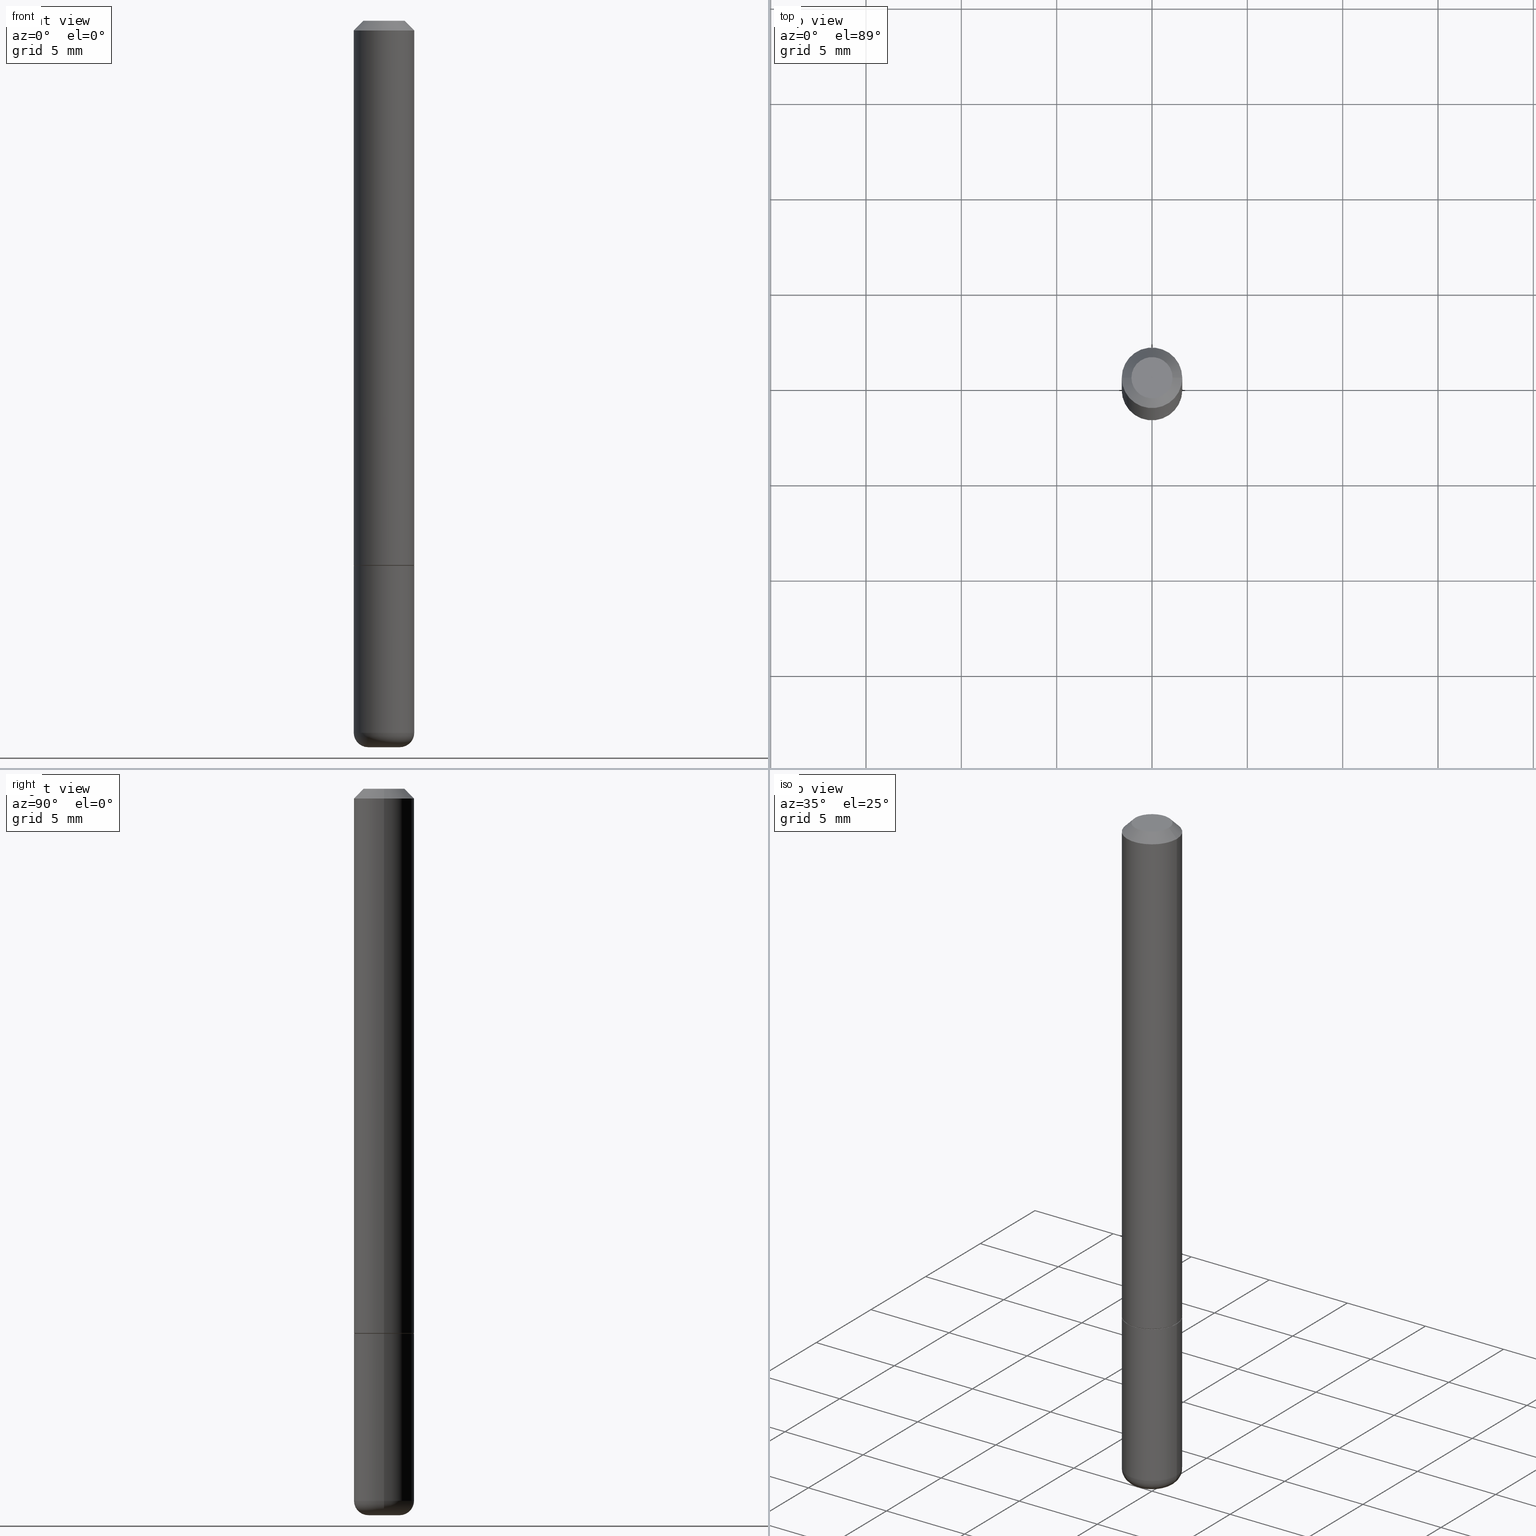
[diagram: canonical four-view strip — front | top / right | iso, engineering-drawing reading convention]
A machine part, canonical four-view strip (front | top / right | iso — engineering-drawing reading convention). The complete STEP part file that produces these views, byte-faithful:
ISO-10303-21;
HEADER;
FILE_DESCRIPTION (( 'STEP AP203' ),
    '1' );
FILE_NAME ('38777.STEP',
    '2024-03-03T12:11:32',
    ( '' ),
    ( '' ),
    'SwSTEP 2.0',
    'SolidWorks 2023',
    '' );
FILE_SCHEMA (( 'CONFIG_CONTROL_DESIGN' ));
ENDSEC;

DATA;
#1 = CARTESIAN_POINT ( 'NONE',  ( 2.751152406958279232E-29, -3.927916506198539224E-15, -1.125000000000000222 ) ) ;
#2 = ADVANCED_FACE ( 'NONE', ( #337 ), #306, .T. ) ;
#3 = PRODUCT_DEFINITION ( 'UNKNOWN', '', #65, #138 ) ;
#4 = LINE ( 'NONE', #326, #348 ) ;
#5 = DIRECTION ( 'NONE',  ( 1.000000000000000000, -6.982962677686262766E-15, 0.000000000000000000 ) ) ;
#6 = AXIS2_PLACEMENT_3D ( 'NONE', #312, #58, #24 ) ;
#7 = CC_DESIGN_PERSON_AND_ORGANIZATION_ASSIGNMENT ( #52, #57, ( #65 ) ) ;
#8 = DIRECTION ( 'NONE',  ( -2.445468806185136597E-29, 3.491481338843145583E-15, 1.000000000000000000 ) ) ;
#9 = FACE_OUTER_BOUND ( 'NONE', #376, .T. ) ;
#10 = DIRECTION ( 'NONE',  ( 1.000000000000000000, -6.982962677686265133E-15, 4.883557194083112340E-29 ) ) ;
#11 = CIRCLE ( 'NONE', #175, 0.02999999999999998154 ) ;
#12 = PERSON_AND_ORGANIZATION_ROLE ( 'creator' ) ;
#13 = EDGE_LOOP ( 'NONE', ( #207, #375 ) ) ;
#14 = MECHANICAL_CONTEXT ( 'NONE', #341, 'mechanical' ) ;
#15 = ORIENTED_EDGE ( 'NONE', *, *, #67, .T. ) ;
#16 = DIRECTION ( 'NONE',  ( 1.000000000000000000, 0.000000000000000000, 0.000000000000000000 ) ) ;
#17 = ORIENTED_EDGE ( 'NONE', *, *, #274, .T. ) ;
#18 = CARTESIAN_POINT ( 'NONE',  ( 0.000000000000000000, 0.000000000000000000, 0.000000000000000000 ) ) ;
#19 = VECTOR ( 'NONE', #412, 39.37007874015748143 ) ;
#20 = VECTOR ( 'NONE', #246, 39.37007874015748143 ) ;
#21 = ORIENTED_EDGE ( 'NONE', *, *, #296, .F. ) ;
#22 = APPROVAL_STATUS ( 'not_yet_approved' ) ;
#23 = ORIENTED_EDGE ( 'NONE', *, *, #296, .T. ) ;
#24 = DIRECTION ( 'NONE',  ( 1.000000000000000000, -6.982962677686269866E-15, 0.000000000000000000 ) ) ;
#25 = APPROVAL_DATE_TIME ( #85, #311 ) ;
#26 = FACE_OUTER_BOUND ( 'NONE', #406, .T. ) ;
#27 = CC_DESIGN_SECURITY_CLASSIFICATION ( #117, ( #65 ) ) ;
#28 = COORDINATED_UNIVERSAL_TIME_OFFSET ( 5, 0, .BEHIND. ) ;
#29 = DIRECTION ( 'NONE',  ( -2.445468806185136877E-29, 3.491481338843145188E-15, 1.000000000000000000 ) ) ;
#30 = FACE_OUTER_BOUND ( 'NONE', #49, .T. ) ;
#31 = PLANE ( 'NONE',  #194 ) ;
#32 = AXIS2_PLACEMENT_3D ( 'NONE', #133, #329, #5 ) ;
#33 = FACE_OUTER_BOUND ( 'NONE', #395, .T. ) ;
#34 = CYLINDRICAL_SURFACE ( 'NONE', #244, 0.06250000000000008327 ) ;
#35 = CARTESIAN_POINT ( 'NONE',  ( -0.06250000000000015266, -1.553038115968214380E-15, -1.124000000000000332 ) ) ;
#36 = VERTEX_POINT ( 'NONE', #248 ) ;
#37 = CONICAL_SURFACE ( 'NONE', #325, 0.06149999999999999911, 0.7853981633975591903 ) ;
#38 = CIRCLE ( 'NONE', #136, 0.06250000000000015266 ) ;
#39 = DIRECTION ( 'NONE',  ( 1.000000000000000000, -6.982962677686266711E-15, 4.876176775795935793E-29 ) ) ;
#40 = DIRECTION ( 'NONE',  ( -0.7071067811866259545, 7.493145998870638150E-15, 0.7071067811864690800 ) ) ;
#41 = ORIENTED_EDGE ( 'NONE', *, *, #123, .F. ) ;
#42 = DIRECTION ( 'NONE',  ( -2.445468806185136597E-29, 3.491481338843145583E-15, 1.000000000000000000 ) ) ;
#43 = ORIENTED_EDGE ( 'NONE', *, *, #342, .T. ) ;
#44 =( GEOMETRIC_REPRESENTATION_CONTEXT ( 3 ) GLOBAL_UNCERTAINTY_ASSIGNED_CONTEXT ( ( #289 ) ) GLOBAL_UNIT_ASSIGNED_CONTEXT ( ( #298, #45, #171 ) ) REPRESENTATION_CONTEXT ( 'NONE', 'WORKASPACE' ) );
#45 =( NAMED_UNIT ( * ) PLANE_ANGLE_UNIT ( ) SI_UNIT ( $, .RADIAN. ) );
#46 = ORIENTED_EDGE ( 'NONE', *, *, #250, .T. ) ;
#47 = ORIENTED_EDGE ( 'NONE', *, *, #259, .F. ) ;
#48 = PERSON_AND_ORGANIZATION ( #396, #334 ) ;
#49 = EDGE_LOOP ( 'NONE', ( #47, #324 ) ) ;
#50 = COORDINATED_UNIVERSAL_TIME_OFFSET ( 5, 0, .BEHIND. ) ;
#51 = ORIENTED_EDGE ( 'NONE', *, *, #83, .F. ) ;
#52 = PERSON_AND_ORGANIZATION ( #396, #334 ) ;
#53 = DIRECTION ( 'NONE',  ( -1.000000000000000000, 6.982962677686265922E-15, -4.876176775795935793E-29 ) ) ;
#54 = COORDINATED_UNIVERSAL_TIME_OFFSET ( 5, 0, .BEHIND. ) ;
#55 = ADVANCED_FACE ( 'NONE', ( #127 ), #223, .T. ) ;
#56 = FACE_OUTER_BOUND ( 'NONE', #358, .T. ) ;
#57 = PERSON_AND_ORGANIZATION_ROLE ( 'design_supplier' ) ;
#58 = DIRECTION ( 'NONE',  ( -2.445468806185136597E-29, 3.491481338843145583E-15, 1.000000000000000000 ) ) ;
#59 = CARTESIAN_POINT ( 'NONE',  ( 0.06250000000000008327, -4.364351673553922611E-16, 3.047610484872464074E-30 ) ) ;
#60 = ADVANCED_FACE ( 'NONE', ( #314 ), #31, .F. ) ;
#61 = PERSON_AND_ORGANIZATION ( #396, #334 ) ;
#62 = DIRECTION ( 'NONE',  ( -2.445468806185136597E-29, 3.491481338843145583E-15, 1.000000000000000000 ) ) ;
#63 = DIRECTION ( 'NONE',  ( 1.000000000000000000, -6.982962677686272233E-15, 0.000000000000000000 ) ) ;
#64 = VECTOR ( 'NONE', #221, 39.37007874015748143 ) ;
#65 = PRODUCT_DEFINITION_FORMATION_WITH_SPECIFIED_SOURCE ( 'ANY', '', #269, .NOT_KNOWN. ) ;
#66 = CARTESIAN_POINT ( 'NONE',  ( 3.594839145092150820E-29, -5.132477568099424807E-15, -1.470000000000000195 ) ) ;
#67 = EDGE_CURVE ( 'NONE', #203, #310, #351, .T. ) ;
#68 = ORIENTED_EDGE ( 'NONE', *, *, #303, .T. ) ;
#69 = CARTESIAN_POINT ( 'NONE',  ( 3.668203209277704895E-29, -5.237222008264718177E-15, -1.500000000000000222 ) ) ;
#70 = CARTESIAN_POINT ( 'NONE',  ( -0.04250000000000002387, 3.316907271900975110E-16, -2.561107494060466786E-17 ) ) ;
#71 = LINE ( 'NONE', #100, #64 ) ;
#72 = PRODUCT_RELATED_PRODUCT_CATEGORY ( 'detail', '', ( #269 ) ) ;
#73 = PERSON_AND_ORGANIZATION_ROLE ( 'design_owner' ) ;
#74 = VERTEX_POINT ( 'NONE', #281 ) ;
#75 = CC_DESIGN_PERSON_AND_ORGANIZATION_ASSIGNMENT ( #242, #343, ( #117 ) ) ;
#76 = VERTEX_POINT ( 'NONE', #347 ) ;
#77 = PRODUCT_DEFINITION_SHAPE ( 'NONE', 'NONE',  #3 ) ;
#78 = ORIENTED_EDGE ( 'NONE', *, *, #266, .F. ) ;
#79 = APPLICATION_PROTOCOL_DEFINITION ( 'international standard', 'config_control_design', 1994, #341 ) ;
#80 = EDGE_LOOP ( 'NONE', ( #46, #68, #115, #146 ) ) ;
#81 = AXIS2_PLACEMENT_3D ( 'NONE', #69, #320, #229 ) ;
#82 = ORIENTED_EDGE ( 'NONE', *, *, #200, .F. ) ;
#83 = EDGE_CURVE ( 'NONE', #310, #129, #131, .T. ) ;
#84 = DIRECTION ( 'NONE',  ( -2.445468806185136597E-29, 3.491481338843145583E-15, 1.000000000000000000 ) ) ;
#85 = DATE_AND_TIME ( #378, #371 ) ;
#86 = PLANE ( 'NONE',  #418 ) ;
#87 = APPROVAL_ROLE ( '' ) ;
#88 = CARTESIAN_POINT ( 'NONE',  ( -0.03250000000000000111, -4.901551178977391647E-15, -1.470000000000000195 ) ) ;
#89 = AXIS2_PLACEMENT_3D ( 'NONE', #66, #260, #10 ) ;
#90 = LOCAL_TIME ( 7, 11, 32.00000000000000000, #137 ) ;
#91 = APPROVAL_STATUS ( 'not_yet_approved' ) ;
#92 = CARTESIAN_POINT ( 'NONE',  ( 0.06250000000000001388, -4.986107516375840208E-16, -0.02000000000000006981 ) ) ;
#93 = DIRECTION ( 'NONE',  ( 1.000000000000000000, -6.982962677686262766E-15, 0.000000000000000000 ) ) ;
#94 = CARTESIAN_POINT ( 'NONE',  ( 2.748706938152094189E-29, -3.924425024859696217E-15, -1.124000000000000332 ) ) ;
#95 = CIRCLE ( 'NONE', #81, 0.03250000000000000111 ) ;
#96 = CC_DESIGN_PERSON_AND_ORGANIZATION_ASSIGNMENT ( #233, #12, ( #3 ) ) ;
#97 = CARTESIAN_POINT ( 'NONE',  ( 2.751152406958279232E-29, -3.927916506198539224E-15, -1.125000000000000222 ) ) ;
#98 = ORIENTED_EDGE ( 'NONE', *, *, #285, .F. ) ;
#99 = CARTESIAN_POINT ( 'NONE',  ( 3.668203209277704895E-29, -5.237222008264718177E-15, -1.500000000000000222 ) ) ;
#100 = CARTESIAN_POINT ( 'NONE',  ( -0.06250000000000008327, 4.440892098500632078E-16, -3.074334431409319967E-30 ) ) ;
#101 = CLOSED_SHELL ( 'NONE', ( #180, #409, #103, #55, #226, #328, #304, #147 ) ) ;
#102 = AXIS2_PLACEMENT_3D ( 'NONE', #357, #165, #135 ) ;
#103 = ADVANCED_FACE ( 'NONE', ( #26 ), #340, .T. ) ;
#104 = APPROVAL_DATE_TIME ( #399, #208 ) ;
#105 = DIRECTION ( 'NONE',  ( 1.000000000000000000, -6.982962677686265133E-15, 4.883557194083112340E-29 ) ) ;
#106 = ORIENTED_EDGE ( 'NONE', *, *, #352, .F. ) ;
#107 = EDGE_CURVE ( 'NONE', #279, #241, #126, .T. ) ;
#108 = LENGTH_MEASURE_WITH_UNIT ( LENGTH_MEASURE( 0.02539999999999999897 ), #270 );
#109 = ORIENTED_EDGE ( 'NONE', *, *, #390, .T. ) ;
#110 = CIRCLE ( 'NONE', #153, 0.06250000000000000000 ) ;
#111 = CYLINDRICAL_SURFACE ( 'NONE', #294, 0.06250000000000008327 ) ;
#112 = ORIENTED_EDGE ( 'NONE', *, *, #280, .T. ) ;
#113 = DIRECTION ( 'NONE',  ( 1.000000000000000000, -6.982962677686267499E-15, 4.879498284297441184E-29 ) ) ;
#114 = ORIENTED_EDGE ( 'NONE', *, *, #123, .T. ) ;
#115 = ORIENTED_EDGE ( 'NONE', *, *, #220, .F. ) ;
#116 = AXIS2_PLACEMENT_3D ( 'NONE', #1, #84, #389 ) ;
#117 = SECURITY_CLASSIFICATION ( '', '', #152 ) ;
#118 = LINE ( 'NONE', #155, #20 ) ;
#119 = COORDINATED_UNIVERSAL_TIME_OFFSET ( 5, 0, .BEHIND. ) ;
#120 = LINE ( 'NONE', #59, #210 ) ;
#121 = EDGE_CURVE ( 'NONE', #271, #392, #11, .T. ) ;
#122 = CARTESIAN_POINT ( 'NONE',  ( -0.06250000000000001388, 3.666055405785286670E-16, -0.02000000000000006981 ) ) ;
#123 = EDGE_CURVE ( 'NONE', #76, #36, #276, .T. ) ;
#124 = CALENDAR_DATE ( 2024, 3, 3 ) ;
#125 = AXIS2_PLACEMENT_3D ( 'NONE', #379, #286, #154 ) ;
#126 = LINE ( 'NONE', #387, #195 ) ;
#127 = FACE_OUTER_BOUND ( 'NONE', #278, .T. ) ;
#128 = DIRECTION ( 'NONE',  ( -2.445468806185136877E-29, 3.491481338843145188E-15, 1.000000000000000000 ) ) ;
#129 = VERTEX_POINT ( 'NONE', #92 ) ;
#130 = CARTESIAN_POINT ( 'NONE',  ( 3.594839145092150820E-29, -5.132477568099424807E-15, -1.470000000000000195 ) ) ;
#131 = CIRCLE ( 'NONE', #230, 0.06250000000000001388 ) ;
#132 = FACE_OUTER_BOUND ( 'NONE', #305, .T. ) ;
#133 = CARTESIAN_POINT ( 'NONE',  ( 2.751152406958279232E-29, -3.927916506198539224E-15, -1.125000000000000222 ) ) ;
#134 = MANIFOLD_SOLID_BREP ( 'Body-Move/Copy2[1]', #287 ) ;
#135 = DIRECTION ( 'NONE',  ( 1.000000000000000000, -6.982962677686262766E-15, 0.000000000000000000 ) ) ;
#136 = AXIS2_PLACEMENT_3D ( 'NONE', #140, #273, #374 ) ;
#137 = COORDINATED_UNIVERSAL_TIME_OFFSET ( 5, 0, .BEHIND. ) ;
#138 = DESIGN_CONTEXT ( 'detailed design', #256, 'design' ) ;
#139 = EDGE_LOOP ( 'NONE', ( #235, #373, #370, #82 ) ) ;
#140 = CARTESIAN_POINT ( 'NONE',  ( 2.748706938152094189E-29, -3.924425024859696217E-15, -1.124000000000000332 ) ) ;
#141 = EDGE_LOOP ( 'NONE', ( #177, #109 ) ) ;
#142 = MANIFOLD_SOLID_BREP ( 'Body-Move/Copy2[2]', #101 ) ;
#143 = PERSON_AND_ORGANIZATION ( #396, #334 ) ;
#144 = ORIENTED_EDGE ( 'NONE', *, *, #250, .F. ) ;
#145 = AXIS2_PLACEMENT_3D ( 'NONE', #99, #8, #161 ) ;
#146 = ORIENTED_EDGE ( 'NONE', *, *, #107, .F. ) ;
#147 = ADVANCED_FACE ( 'NONE', ( #318 ), #86, .F. ) ;
#148 = CC_DESIGN_PERSON_AND_ORGANIZATION_ASSIGNMENT ( #143, #73, ( #269 ) ) ;
#149 = ORIENTED_EDGE ( 'NONE', *, *, #107, .T. ) ;
#150 = DATE_AND_TIME ( #249, #327 ) ;
#151 = CARTESIAN_POINT ( 'NONE',  ( 4.890937612370289799E-31, -6.982962677686315028E-17, -0.02000000000000006981 ) ) ;
#152 = SECURITY_CLASSIFICATION_LEVEL ( 'unclassified' ) ;
#153 = AXIS2_PLACEMENT_3D ( 'NONE', #164, #293, #93 ) ;
#154 = DIRECTION ( 'NONE',  ( 1.000000000000000000, -6.982962677686266711E-15, 4.876176775795935793E-29 ) ) ;
#155 = CARTESIAN_POINT ( 'NONE',  ( 0.06250000000000001388, -4.986107516375840208E-16, -0.02000000000000006981 ) ) ;
#156 = DIRECTION ( 'NONE',  ( 1.000000000000000000, -6.982962677686266711E-15, 4.876176775795935793E-29 ) ) ;
#157 = AXIS2_PLACEMENT_3D ( 'NONE', #228, #360, #113 ) ;
#158 = DIRECTION ( 'NONE',  ( -1.000000000000000000, 6.982962677686265922E-15, -4.876176775795935793E-29 ) ) ;
#159 = CARTESIAN_POINT ( 'NONE',  ( 0.000000000000000000, 0.000000000000000000, 0.000000000000000000 ) ) ;
#160 = DIRECTION ( 'NONE',  ( 1.000000000000000000, -6.982962677686265922E-15, 4.876176775795935793E-29 ) ) ;
#161 = DIRECTION ( 'NONE',  ( 1.000000000000000000, -6.982962677686258033E-15, 0.000000000000000000 ) ) ;
#162 = AXIS2_PLACEMENT_3D ( 'NONE', #295, #391, #160 ) ;
#163 = AXIS2_PLACEMENT_3D ( 'NONE', #206, #42, #407 ) ;
#164 = CARTESIAN_POINT ( 'NONE',  ( 2.751152406958279232E-29, -3.927916506198539224E-15, -1.125000000000000222 ) ) ;
#165 = DIRECTION ( 'NONE',  ( -2.445468806185136597E-29, 3.491481338843145583E-15, 1.000000000000000000 ) ) ;
#166 = EDGE_LOOP ( 'NONE', ( #41, #339 ) ) ;
#167 = AXIS2_PLACEMENT_3D ( 'NONE', #179, #414, #284 ) ;
#168 = CC_DESIGN_APPROVAL ( #311, ( #65 ) ) ;
#169 = ORIENTED_EDGE ( 'NONE', *, *, #200, .T. ) ;
#170 = ADVANCED_FACE ( 'NONE', ( #30 ), #212, .T. ) ;
#171 =( NAMED_UNIT ( * ) SI_UNIT ( $, .STERADIAN. ) SOLID_ANGLE_UNIT ( ) );
#172 = VERTEX_POINT ( 'NONE', #178 ) ;
#173 = DIRECTION ( 'NONE',  ( 1.000000000000000000, -6.982962677686269866E-15, 0.000000000000000000 ) ) ;
#174 = ORIENTED_EDGE ( 'NONE', *, *, #181, .T. ) ;
#175 = AXIS2_PLACEMENT_3D ( 'NONE', #88, #185, #350 ) ;
#176 = CALENDAR_DATE ( 2024, 3, 3 ) ;
#177 = ORIENTED_EDGE ( 'NONE', *, *, #352, .T. ) ;
#178 = CARTESIAN_POINT ( 'NONE',  ( 0.03250000000000000111, -5.464168295289522318E-15, -1.500000000000000222 ) ) ;
#179 = CARTESIAN_POINT ( 'NONE',  ( 4.890937612370289799E-31, -6.982962677686315028E-17, -0.02000000000000006981 ) ) ;
#180 = ADVANCED_FACE ( 'NONE', ( #56 ), #292, .T. ) ;
#181 = EDGE_CURVE ( 'NONE', #404, #129, #118, .T. ) ;
#182 = TOROIDAL_SURFACE ( 'NONE', #89, 0.03250000000000000111, 0.02999999999999997807 ) ;
#183 = DIRECTION ( 'NONE',  ( 2.445468806185136597E-29, -3.491481338843145583E-15, -1.000000000000000000 ) ) ;
#184 = CARTESIAN_POINT ( 'NONE',  ( 0.000000000000000000, 0.000000000000000000, 0.000000000000000000 ) ) ;
#185 = DIRECTION ( 'NONE',  ( 7.105427357601001859E-15, 1.000000000000000000, -3.491481338843145583E-15 ) ) ;
#186 = VECTOR ( 'NONE', #290, 39.37007874015748143 ) ;
#187 = CARTESIAN_POINT ( 'NONE',  ( 0.06250000000000000000, -4.364351673553930894E-15, -1.125000000000000222 ) ) ;
#188 = AXIS2_PLACEMENT_3D ( 'NONE', #199, #240, #16 ) ;
#189 = CARTESIAN_POINT ( 'NONE',  ( -0.03250000000000000111, -4.847341988696023998E-15, -1.500000000000000222 ) ) ;
#190 = PLANE ( 'NONE',  #162 ) ;
#191 = ORIENTED_EDGE ( 'NONE', *, *, #280, .F. ) ;
#192 = EDGE_CURVE ( 'NONE', #129, #310, #307, .T. ) ;
#193 = CARTESIAN_POINT ( 'NONE',  ( 0.06149999999999999911, -4.357368710876244879E-15, -1.125000000000000222 ) ) ;
#194 = AXIS2_PLACEMENT_3D ( 'NONE', #251, #219, #158 ) ;
#195 = VECTOR ( 'NONE', #29, 39.37007874015748143 ) ;
#196 = APPROVAL_PERSON_ORGANIZATION ( #410, #402, #87 ) ;
#197 = CARTESIAN_POINT ( 'NONE',  ( -0.06149999999999999911, -3.490932723706077616E-15, -1.125000000000000222 ) ) ;
#198 = ORIENTED_EDGE ( 'NONE', *, *, #83, .T. ) ;
#199 = CARTESIAN_POINT ( 'NONE',  ( 0.000000000000000000, 0.000000000000000000, 0.000000000000000000 ) ) ;
#200 = EDGE_CURVE ( 'NONE', #322, #129, #120, .T. ) ;
#201 = ADVANCED_FACE ( 'NONE', ( #385 ), #218, .T. ) ;
#202 = EDGE_CURVE ( 'NONE', #336, #310, #71, .T. ) ;
#203 = VERTEX_POINT ( 'NONE', #70 ) ;
#204 = DIRECTION ( 'NONE',  ( -2.445468806185136597E-29, 3.491481338843145583E-15, 1.000000000000000000 ) ) ;
#205 = ORIENTED_EDGE ( 'NONE', *, *, #192, .T. ) ;
#206 = CARTESIAN_POINT ( 'NONE',  ( 6.263108486011318528E-46, -8.942059022282683748E-32, -2.561107494060246767E-17 ) ) ;
#207 = ORIENTED_EDGE ( 'NONE', *, *, #220, .T. ) ;
#208 = APPROVAL ( #22, 'UNSPECIFIED' ) ;
#209 = ORIENTED_EDGE ( 'NONE', *, *, #121, .T. ) ;
#210 = VECTOR ( 'NONE', #381, 39.37007874015748143 ) ;
#211 = PERSON_AND_ORGANIZATION ( #396, #334 ) ;
#212 = PLANE ( 'NONE',  #354 ) ;
#213 = CARTESIAN_POINT ( 'NONE',  ( 2.967759138016664535E-16, 0.04250000000000002387, -1.611934943711350245E-16 ) ) ;
#214 = APPROVAL_STATUS ( 'not_yet_approved' ) ;
#215 = DIRECTION ( 'NONE',  ( 1.000000000000000000, -6.982962677686267499E-15, 0.000000000000000000 ) ) ;
#216 = APPROVAL_DATE_TIME ( #380, #402 ) ;
#217 = CIRCLE ( 'NONE', #145, 0.03250000000000000111 ) ;
#218 = CYLINDRICAL_SURFACE ( 'NONE', #369, 0.06250000000000000000 ) ;
#219 = DIRECTION ( 'NONE',  ( 2.438088387897960049E-29, -3.491481338843145188E-15, -1.000000000000000000 ) ) ;
#220 = EDGE_CURVE ( 'NONE', #241, #74, #282, .T. ) ;
#221 = DIRECTION ( 'NONE',  ( -2.445468806185136877E-29, 3.491481338843145188E-15, 1.000000000000000000 ) ) ;
#222 = DIMENSIONAL_EXPONENTS ( 1.000000000000000000, 0.000000000000000000, 0.000000000000000000, 0.000000000000000000, 0.000000000000000000, 0.000000000000000000, 0.000000000000000000 ) ;
#223 = CONICAL_SURFACE ( 'NONE', #237, 0.06250000000000001388, 0.7853981633974471688 ) ;
#224 = LINE ( 'NONE', #197, #332 ) ;
#225 = EDGE_LOOP ( 'NONE', ( #268, #17, #149, #98 ) ) ;
#226 = ADVANCED_FACE ( 'NONE', ( #9 ), #34, .T. ) ;
#227 = EDGE_LOOP ( 'NONE', ( #243, #209, #144, #21 ) ) ;
#228 = CARTESIAN_POINT ( 'NONE',  ( 6.263108486011318528E-46, -8.942059022282683748E-32, -2.561107494060246767E-17 ) ) ;
#229 = DIRECTION ( 'NONE',  ( 1.000000000000000000, -6.982962677686258033E-15, 0.000000000000000000 ) ) ;
#230 = AXIS2_PLACEMENT_3D ( 'NONE', #151, #62, #215 ) ;
#231 = AXIS2_PLACEMENT_3D ( 'NONE', #330, #363, #173 ) ;
#232 = EDGE_CURVE ( 'NONE', #336, #322, #413, .T. ) ;
#233 = PERSON_AND_ORGANIZATION ( #396, #334 ) ;
#234 = DIRECTION ( 'NONE',  ( 1.000000000000000000, -6.982962677686266711E-15, 4.876176775795935793E-29 ) ) ;
#235 = ORIENTED_EDGE ( 'NONE', *, *, #364, .T. ) ;
#236 = ORIENTED_EDGE ( 'NONE', *, *, #232, .F. ) ;
#237 = AXIS2_PLACEMENT_3D ( 'NONE', #316, #183, #417 ) ;
#238 = DIRECTION ( 'NONE',  ( -2.445468806185136597E-29, 3.491481338843145583E-15, 1.000000000000000000 ) ) ;
#239 = ORIENTED_EDGE ( 'NONE', *, *, #67, .F. ) ;
#240 = DIRECTION ( 'NONE',  ( 0.000000000000000000, 0.000000000000000000, 1.000000000000000000 ) ) ;
#241 = VERTEX_POINT ( 'NONE', #187 ) ;
#242 = PERSON_AND_ORGANIZATION ( #396, #334 ) ;
#243 = ORIENTED_EDGE ( 'NONE', *, *, #259, .T. ) ;
#244 = AXIS2_PLACEMENT_3D ( 'NONE', #159, #362, #39 ) ;
#245 = AXIS2_PLACEMENT_3D ( 'NONE', #400, #238, #105 ) ;
#246 = DIRECTION ( 'NONE',  ( 0.7071067811865466846, -7.319954787623252890E-15, -0.7071067811865483499 ) ) ;
#247 = CC_DESIGN_DATE_AND_TIME_ASSIGNMENT ( #365, #313, ( #3 ) ) ;
#248 = CARTESIAN_POINT ( 'NONE',  ( -0.06149999999999999911, -3.485634269357855609E-15, -1.125000000000000222 ) ) ;
#249 = CALENDAR_DATE ( 2024, 3, 3 ) ;
#250 = EDGE_CURVE ( 'NONE', #279, #392, #264, .T. ) ;
#251 = CARTESIAN_POINT ( 'NONE',  ( 2.751152406958279232E-29, -3.927916506198539224E-15, -1.125000000000000222 ) ) ;
#252 = PERSON_AND_ORGANIZATION_ROLE ( 'creator' ) ;
#253 = CIRCLE ( 'NONE', #231, 0.06149999999999999911 ) ;
#254 = LOCAL_TIME ( 7, 11, 32.00000000000000000, #50 ) ;
#255 = DIRECTION ( 'NONE',  ( 2.445468806185136597E-29, -3.491481338843145583E-15, -1.000000000000000000 ) ) ;
#256 = APPLICATION_CONTEXT ( 'configuration controlled 3d designs of mechanical parts and assemblies' ) ;
#257 = DIRECTION ( 'NONE',  ( 2.438088387897960049E-29, -3.491481338843145188E-15, -1.000000000000000000 ) ) ;
#258 = FACE_OUTER_BOUND ( 'NONE', #166, .T. ) ;
#259 = EDGE_CURVE ( 'NONE', #172, #271, #95, .T. ) ;
#260 = DIRECTION ( 'NONE',  ( -2.445468806185136597E-29, 3.491481338843145583E-15, 1.000000000000000000 ) ) ;
#261 = CARTESIAN_POINT ( 'NONE',  ( -0.06250000000000001388, 3.666055405785286670E-16, -0.02000000000000006981 ) ) ;
#262 = DIRECTION ( 'NONE',  ( 1.000000000000000000, -6.982962677686269077E-15, 0.000000000000000000 ) ) ;
#263 = LINE ( 'NONE', #193, #186 ) ;
#264 = CIRCLE ( 'NONE', #319, 0.06250000000000000000 ) ;
#265 = CC_DESIGN_APPROVAL ( #208, ( #3 ) ) ;
#266 = EDGE_CURVE ( 'NONE', #36, #336, #224, .T. ) ;
#267 = CALENDAR_DATE ( 2024, 3, 3 ) ;
#268 = ORIENTED_EDGE ( 'NONE', *, *, #303, .F. ) ;
#269 = PRODUCT ( '38777', '38777', '', ( #14 ) ) ;
#270 =( LENGTH_UNIT ( ) NAMED_UNIT ( * ) SI_UNIT ( $, .METRE. ) );
#271 = VERTEX_POINT ( 'NONE', #189 ) ;
#272 = ADVANCED_FACE ( 'NONE', ( #33 ), #182, .T. ) ;
#273 = DIRECTION ( 'NONE',  ( -2.445468806185136597E-29, 3.491481338843145583E-15, 1.000000000000000000 ) ) ;
#274 = EDGE_CURVE ( 'NONE', #392, #279, #361, .T. ) ;
#275 = ORIENTED_EDGE ( 'NONE', *, *, #390, .F. ) ;
#276 = CIRCLE ( 'NONE', #116, 0.06149999999999999911 ) ;
#277 = TOROIDAL_SURFACE ( 'NONE', #245, 0.03250000000000000111, 0.02999999999999997807 ) ;
#278 = EDGE_LOOP ( 'NONE', ( #300, #106, #15, #198 ) ) ;
#279 = VERTEX_POINT ( 'NONE', #353 ) ;
#280 = EDGE_CURVE ( 'NONE', #76, #322, #263, .T. ) ;
#281 = CARTESIAN_POINT ( 'NONE',  ( -0.06250000000000000000, -4.086107827298919005E-15, -1.125000000000000222 ) ) ;
#282 = CIRCLE ( 'NONE', #32, 0.06250000000000000000 ) ;
#283 = DIRECTION ( 'NONE',  ( -1.000000000000000000, 6.982962677686265922E-15, -4.876176775795935793E-29 ) ) ;
#284 = DIRECTION ( 'NONE',  ( 1.000000000000000000, -6.982962677686267499E-15, 0.000000000000000000 ) ) ;
#285 = EDGE_CURVE ( 'NONE', #74, #241, #110, .T. ) ;
#286 = DIRECTION ( 'NONE',  ( -2.445468806185136597E-29, 3.491481338843145583E-15, 1.000000000000000000 ) ) ;
#287 = CLOSED_SHELL ( 'NONE', ( #2, #382, #60, #201, #272, #170 ) ) ;
#288 = DIRECTION ( 'NONE',  ( -1.000000000000000000, 6.982962677686267499E-15, 0.000000000000000000 ) ) ;
#289 = UNCERTAINTY_MEASURE_WITH_UNIT (LENGTH_MEASURE( 1.000000000000000082E-05 ), #298, 'distance_accuracy_value', 'NONE');
#290 = DIRECTION ( 'NONE',  ( 0.7071067811866259545, -2.468850131083078659E-15, 0.7071067811864690800 ) ) ;
#291 = CARTESIAN_POINT ( 'NONE',  ( 0.06250000000000015266, -4.360860192215089464E-15, -1.124000000000000332 ) ) ;
#292 = CONICAL_SURFACE ( 'NONE', #6, 0.06149999999999999911, 0.7853981633975591903 ) ;
#293 = DIRECTION ( 'NONE',  ( -2.445468806185136597E-29, 3.491481338843145583E-15, 1.000000000000000000 ) ) ;
#294 = AXIS2_PLACEMENT_3D ( 'NONE', #18, #204, #234 ) ;
#295 = CARTESIAN_POINT ( 'NONE',  ( 2.751152406958279232E-29, -3.927916506198539224E-15, -1.125000000000000222 ) ) ;
#296 = EDGE_CURVE ( 'NONE', #172, #279, #405, .T. ) ;
#297 = DIRECTION ( 'NONE',  ( 1.000000000000000000, -6.982962677686262766E-15, 0.000000000000000000 ) ) ;
#298 =( CONVERSION_BASED_UNIT ( 'INCH', #108 ) LENGTH_UNIT ( ) NAMED_UNIT ( #222 ) );
#299 = AXIS2_PLACEMENT_3D ( 'NONE', #94, #321, #262 ) ;
#300 = ORIENTED_EDGE ( 'NONE', *, *, #181, .F. ) ;
#301 = APPROVAL_PERSON_ORGANIZATION ( #61, #311, #346 ) ;
#302 = ORIENTED_EDGE ( 'NONE', *, *, #232, .T. ) ;
#303 = EDGE_CURVE ( 'NONE', #392, #74, #4, .T. ) ;
#304 = ADVANCED_FACE ( 'NONE', ( #258 ), #190, .F. ) ;
#305 = EDGE_LOOP ( 'NONE', ( #78, #411, #112, #236 ) ) ;
#306 = CYLINDRICAL_SURFACE ( 'NONE', #125, 0.06250000000000000000 ) ;
#307 = CIRCLE ( 'NONE', #167, 0.06250000000000001388 ) ;
#308 = APPROVAL_PERSON_ORGANIZATION ( #48, #208, #338 ) ;
#309 = APPLICATION_PROTOCOL_DEFINITION ( 'international standard', 'config_control_design', 1994, #256 ) ;
#310 = VERTEX_POINT ( 'NONE', #261 ) ;
#311 = APPROVAL ( #91, 'UNSPECIFIED' ) ;
#312 = CARTESIAN_POINT ( 'NONE',  ( 2.751152406958279232E-29, -3.927916506198539224E-15, -1.125000000000000222 ) ) ;
#313 = DATE_TIME_ROLE ( 'creation_date' ) ;
#314 = FACE_OUTER_BOUND ( 'NONE', #13, .T. ) ;
#315 = LOCAL_TIME ( 7, 11, 32.00000000000000000, #28 ) ;
#316 = CARTESIAN_POINT ( 'NONE',  ( 4.890937612370289799E-31, -6.982962677686315028E-17, -0.02000000000000006981 ) ) ;
#317 = DIRECTION ( 'NONE',  ( -2.445468806185136597E-29, 3.491481338843145583E-15, 1.000000000000000000 ) ) ;
#318 = FACE_OUTER_BOUND ( 'NONE', #141, .T. ) ;
#319 = AXIS2_PLACEMENT_3D ( 'NONE', #130, #398, #297 ) ;
#320 = DIRECTION ( 'NONE',  ( -2.445468806185136597E-29, 3.491481338843145583E-15, 1.000000000000000000 ) ) ;
#321 = DIRECTION ( 'NONE',  ( -2.445468806185136597E-29, 3.491481338843145583E-15, 1.000000000000000000 ) ) ;
#322 = VERTEX_POINT ( 'NONE', #291 ) ;
#323 = DIRECTION ( 'NONE',  ( 1.000000000000000000, -6.982962677686269866E-15, 0.000000000000000000 ) ) ;
#324 = ORIENTED_EDGE ( 'NONE', *, *, #342, .F. ) ;
#325 = AXIS2_PLACEMENT_3D ( 'NONE', #97, #359, #323 ) ;
#326 = CARTESIAN_POINT ( 'NONE',  ( -0.06250000000000000000, 4.440892098500626162E-16, -3.074334431409316114E-30 ) ) ;
#327 = LOCAL_TIME ( 7, 11, 32.00000000000000000, #119 ) ;
#328 = ADVANCED_FACE ( 'NONE', ( #132 ), #37, .T. ) ;
#329 = DIRECTION ( 'NONE',  ( -2.445468806185136597E-29, 3.491481338843145583E-15, 1.000000000000000000 ) ) ;
#330 = CARTESIAN_POINT ( 'NONE',  ( 2.751152406958279232E-29, -3.927916506198539224E-15, -1.125000000000000222 ) ) ;
#331 = ORIENTED_EDGE ( 'NONE', *, *, #266, .T. ) ;
#332 = VECTOR ( 'NONE', #40, 39.37007874015748143 ) ;
#333 = ORIENTED_EDGE ( 'NONE', *, *, #121, .F. ) ;
#334 = ORGANIZATION ( 'UNSPECIFIED', 'UNSPECIFIED', '' ) ;
#335 = FACE_OUTER_BOUND ( 'NONE', #139, .T. ) ;
#336 = VERTEX_POINT ( 'NONE', #35 ) ;
#337 = FACE_OUTER_BOUND ( 'NONE', #80, .T. ) ;
#338 = APPROVAL_ROLE ( '' ) ;
#339 = ORIENTED_EDGE ( 'NONE', *, *, #388, .F. ) ;
#340 = CONICAL_SURFACE ( 'NONE', #377, 0.06250000000000001388, 0.7853981633974471688 ) ;
#341 = APPLICATION_CONTEXT ( 'configuration controlled 3d designs of mechanical parts and assemblies' ) ;
#342 = EDGE_CURVE ( 'NONE', #271, #172, #217, .T. ) ;
#343 = PERSON_AND_ORGANIZATION_ROLE ( 'classification_officer' ) ;
#344 = CARTESIAN_POINT ( 'NONE',  ( 1.247269209275591092E-28, 7.371307193262508590E-15, -1.500000000000000444 ) ) ;
#345 = DIRECTION ( 'NONE',  ( 2.438088387897960049E-29, -3.491481338843145188E-15, -1.000000000000000000 ) ) ;
#346 = APPROVAL_ROLE ( '' ) ;
#347 = CARTESIAN_POINT ( 'NONE',  ( 0.06149999999999999911, -4.357368710876244879E-15, -1.125000000000000222 ) ) ;
#348 = VECTOR ( 'NONE', #128, 39.37007874015748143 ) ;
#349 = CC_DESIGN_APPROVAL ( #402, ( #117 ) ) ;
#350 = DIRECTION ( 'NONE',  ( -1.000000000000000000, 7.105427357600995548E-15, 0.000000000000000000 ) ) ;
#351 = LINE ( 'NONE', #122, #19 ) ;
#352 = EDGE_CURVE ( 'NONE', #203, #404, #386, .T. ) ;
#353 = CARTESIAN_POINT ( 'NONE',  ( 0.06249999999999999306, -5.568912735454815688E-15, -1.470000000000000195 ) ) ;
#354 = AXIS2_PLACEMENT_3D ( 'NONE', #344, #345, #53 ) ;
#355 = CIRCLE ( 'NONE', #163, 0.04250000000000002387 ) ;
#356 = CC_DESIGN_PERSON_AND_ORGANIZATION_ASSIGNMENT ( #211, #252, ( #65 ) ) ;
#357 = CARTESIAN_POINT ( 'NONE',  ( 3.594839145092150820E-29, -5.132477568099424807E-15, -1.470000000000000195 ) ) ;
#358 = EDGE_LOOP ( 'NONE', ( #114, #331, #408, #191 ) ) ;
#359 = DIRECTION ( 'NONE',  ( -2.445468806185136597E-29, 3.491481338843145583E-15, 1.000000000000000000 ) ) ;
#360 = DIRECTION ( 'NONE',  ( -2.445468806185136597E-29, 3.491481338843145583E-15, 1.000000000000000000 ) ) ;
#361 = CIRCLE ( 'NONE', #102, 0.06250000000000000000 ) ;
#362 = DIRECTION ( 'NONE',  ( -2.445468806185136597E-29, 3.491481338843145583E-15, 1.000000000000000000 ) ) ;
#363 = DIRECTION ( 'NONE',  ( -2.445468806185136597E-29, 3.491481338843145583E-15, 1.000000000000000000 ) ) ;
#364 = EDGE_CURVE ( 'NONE', #322, #336, #38, .T. ) ;
#365 = DATE_AND_TIME ( #267, #90 ) ;
#366 = ORIENTED_EDGE ( 'NONE', *, *, #202, .F. ) ;
#367 = CC_DESIGN_DATE_AND_TIME_ASSIGNMENT ( #150, #384, ( #117 ) ) ;
#368 = CARTESIAN_POINT ( 'NONE',  ( 0.04250000000000002387, -3.950909582714371883E-16, -2.561107494060004870E-17 ) ) ;
#369 = AXIS2_PLACEMENT_3D ( 'NONE', #184, #317, #156 ) ;
#370 = ORIENTED_EDGE ( 'NONE', *, *, #192, .F. ) ;
#371 = LOCAL_TIME ( 7, 11, 32.00000000000000000, #54 ) ;
#372 = CARTESIAN_POINT ( 'NONE',  ( -0.06249999999999999306, -4.688388358249362191E-15, -1.470000000000000195 ) ) ;
#373 = ORIENTED_EDGE ( 'NONE', *, *, #202, .T. ) ;
#374 = DIRECTION ( 'NONE',  ( 1.000000000000000000, -6.982962677686269077E-15, 0.000000000000000000 ) ) ;
#375 = ORIENTED_EDGE ( 'NONE', *, *, #285, .T. ) ;
#376 = EDGE_LOOP ( 'NONE', ( #366, #302, #169, #51 ) ) ;
#377 = AXIS2_PLACEMENT_3D ( 'NONE', #416, #255, #288 ) ;
#378 = CALENDAR_DATE ( 2024, 3, 3 ) ;
#379 = CARTESIAN_POINT ( 'NONE',  ( 0.000000000000000000, 0.000000000000000000, 0.000000000000000000 ) ) ;
#380 = DATE_AND_TIME ( #124, #315 ) ;
#381 = DIRECTION ( 'NONE',  ( -2.445468806185136877E-29, 3.491481338843145188E-15, 1.000000000000000000 ) ) ;
#382 = ADVANCED_FACE ( 'NONE', ( #403 ), #277, .T. ) ;
#383 = ADVANCED_BREP_SHAPE_REPRESENTATION ( '38777', ( #134, #142, #188 ), #44 ) ;
#384 = DATE_TIME_ROLE ( 'classification_date' ) ;
#385 = FACE_OUTER_BOUND ( 'NONE', #225, .T. ) ;
#386 = CIRCLE ( 'NONE', #157, 0.04250000000000002387 ) ;
#387 = CARTESIAN_POINT ( 'NONE',  ( 0.06250000000000000000, -4.364351673553916694E-16, 3.047610484872459871E-30 ) ) ;
#388 = EDGE_CURVE ( 'NONE', #36, #76, #253, .T. ) ;
#389 = DIRECTION ( 'NONE',  ( 1.000000000000000000, -6.982962677686269866E-15, 0.000000000000000000 ) ) ;
#390 = EDGE_CURVE ( 'NONE', #404, #203, #355, .T. ) ;
#391 = DIRECTION ( 'NONE',  ( -2.438088387897960049E-29, 3.491481338843145188E-15, 1.000000000000000000 ) ) ;
#392 = VERTEX_POINT ( 'NONE', #372 ) ;
#393 = AXIS2_PLACEMENT_3D ( 'NONE', #394, #397, #63 ) ;
#394 = CARTESIAN_POINT ( 'NONE',  ( 0.03250000000000000111, -5.359423855124228160E-15, -1.470000000000000195 ) ) ;
#395 = EDGE_LOOP ( 'NONE', ( #333, #43, #23, #401 ) ) ;
#396 = PERSON ( 'UNSPECIFIED', 'UNSPECIFIED', 'UNSPECIFIED', ('UNSPECIFIED'), ('UNSPECIFIED'), ('UNSPECIFIED') ) ;
#397 = DIRECTION ( 'NONE',  ( -6.982962677686266711E-15, -1.000000000000000000, 3.491481338843145583E-15 ) ) ;
#398 = DIRECTION ( 'NONE',  ( -2.445468806185136597E-29, 3.491481338843145583E-15, 1.000000000000000000 ) ) ;
#399 = DATE_AND_TIME ( #176, #254 ) ;
#400 = CARTESIAN_POINT ( 'NONE',  ( 3.594839145092150820E-29, -5.132477568099424807E-15, -1.470000000000000195 ) ) ;
#401 = ORIENTED_EDGE ( 'NONE', *, *, #274, .F. ) ;
#402 = APPROVAL ( #214, 'UNSPECIFIED' ) ;
#403 = FACE_OUTER_BOUND ( 'NONE', #227, .T. ) ;
#404 = VERTEX_POINT ( 'NONE', #368 ) ;
#405 = CIRCLE ( 'NONE', #393, 0.02999999999999998154 ) ;
#406 = EDGE_LOOP ( 'NONE', ( #275, #174, #205, #239 ) ) ;
#407 = DIRECTION ( 'NONE',  ( 1.000000000000000000, -6.982962677686267499E-15, 4.879498284297441184E-29 ) ) ;
#408 = ORIENTED_EDGE ( 'NONE', *, *, #364, .F. ) ;
#409 = ADVANCED_FACE ( 'NONE', ( #335 ), #111, .T. ) ;
#410 = PERSON_AND_ORGANIZATION ( #396, #334 ) ;
#411 = ORIENTED_EDGE ( 'NONE', *, *, #388, .T. ) ;
#412 = DIRECTION ( 'NONE',  ( -0.7071067811865466846, 2.468850131082247989E-15, -0.7071067811865483499 ) ) ;
#413 = CIRCLE ( 'NONE', #299, 0.06250000000000015266 ) ;
#414 = DIRECTION ( 'NONE',  ( -2.445468806185136597E-29, 3.491481338843145583E-15, 1.000000000000000000 ) ) ;
#415 = SHAPE_DEFINITION_REPRESENTATION ( #77, #383 ) ;
#416 = CARTESIAN_POINT ( 'NONE',  ( 4.890937612370289799E-31, -6.982962677686315028E-17, -0.02000000000000006981 ) ) ;
#417 = DIRECTION ( 'NONE',  ( -1.000000000000000000, 6.982962677686267499E-15, 0.000000000000000000 ) ) ;
#418 = AXIS2_PLACEMENT_3D ( 'NONE', #213, #257, #283 ) ;
ENDSEC;
END-ISO-10303-21;
